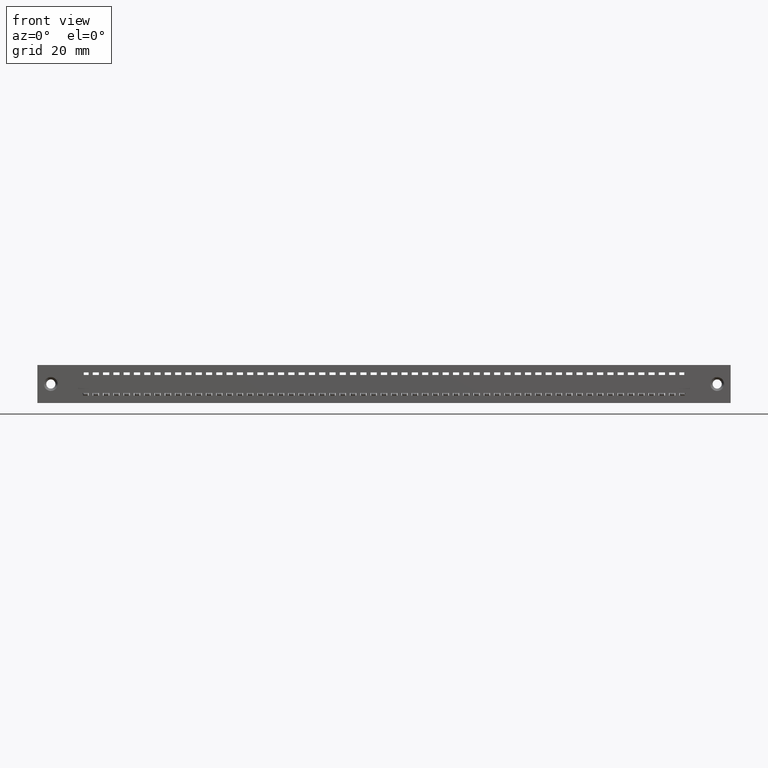
[diagram: clean part render]
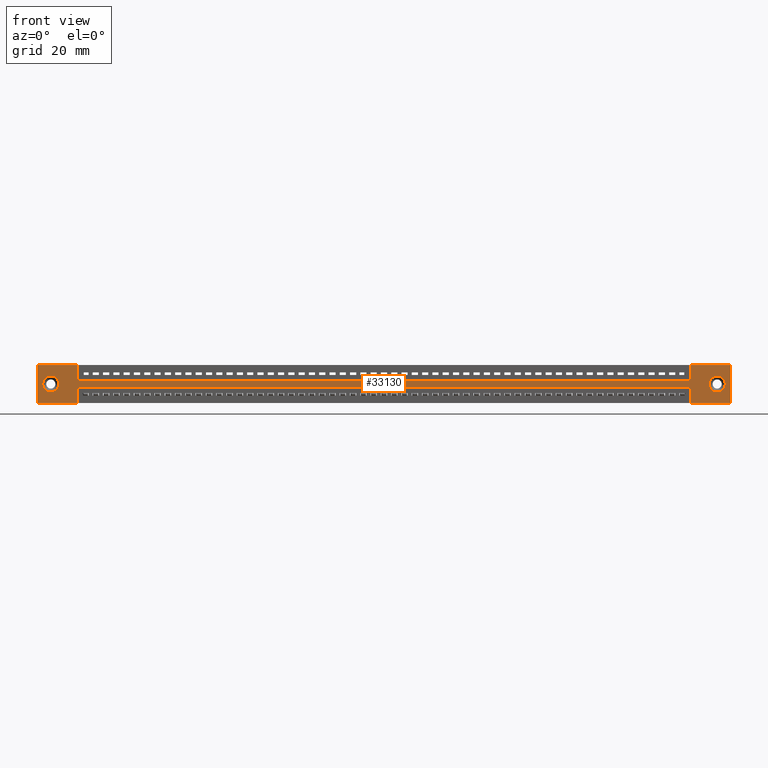
[diagram: same view with one face highlighted and labeled with its STEP entity id]
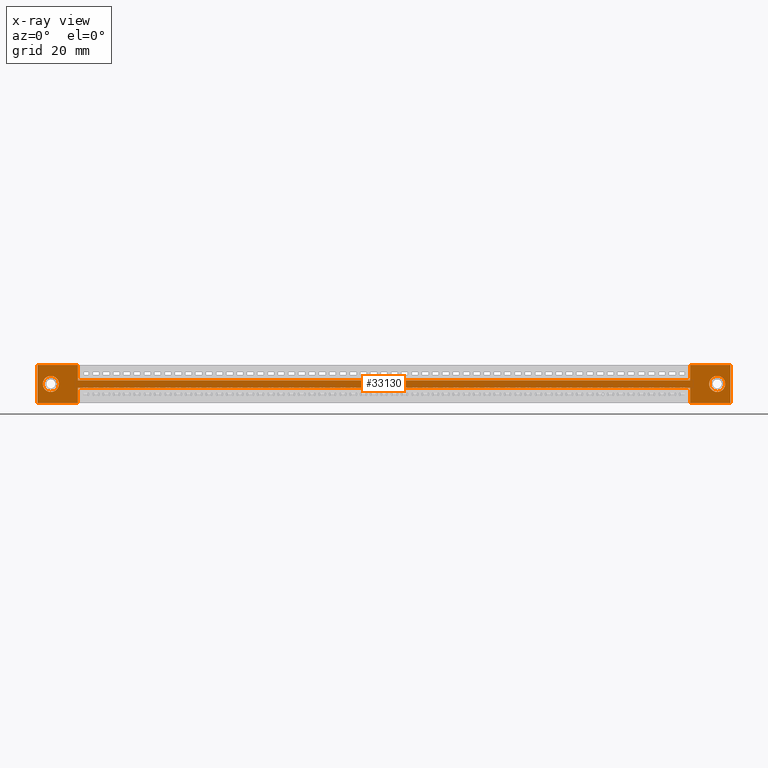
[diagram: x-ray of the same camera — body ghosted, the highlighted face saturated]
A machine part, front view. The second image highlights one B-rep face of the part: STEP entity #33130.
The next image is the same camera in x-ray: the body ghosted, the highlighted face saturated — about 0% of this face is hidden behind the body in this view.
In plain terms, the highlighted planar face has unit normal (0, -1, 0).
Its self-contained STEP definition (entity closure, byte-faithful):
#1000 = EDGE_CURVE ( 'NONE', #39339, #37247, #9983, .T. ) ;
#1463 = DIRECTION ( 'NONE',  ( 0.0000000000000000000, 0.0000000000000000000, -1.000000000000000000 ) ) ;
#2193 = CARTESIAN_POINT ( 'NONE',  ( 0.1299999999999994200, 0.0000000000000000000, -0.1850000000000000800 ) ) ;
#2438 = ORIENTED_EDGE ( 'NONE', *, *, #39757, .F. ) ;
#2510 = VERTEX_POINT ( 'NONE', #28926 ) ;
#2716 = EDGE_CURVE ( 'NONE', #27831, #22664, #26837, .T. ) ;
#2828 = CARTESIAN_POINT ( 'NONE',  ( 6.735000000000000300, 0.0000000000000000000, -0.3700000000000000000 ) ) ;
#2866 = DIRECTION ( 'NONE',  ( 0.0000000000000000000, 1.000000000000000000, -0.0000000000000000000 ) ) ;
#2947 = DIRECTION ( 'NONE',  ( 0.0000000000000000000, 1.000000000000000000, 0.0000000000000000000 ) ) ;
#3117 = VERTEX_POINT ( 'NONE', #31866 ) ;
#3747 = VERTEX_POINT ( 'NONE', #42183 ) ;
#4554 = CARTESIAN_POINT ( 'NONE',  ( 0.0000000000000000000, 0.0000000000000000000, -0.3700000000000001600 ) ) ;
#4754 = EDGE_CURVE ( 'NONE', #3747, #40182, #26007, .T. ) ;
#4962 = LINE ( 'NONE', #14918, #40046 ) ;
#5244 = EDGE_LOOP ( 'NONE', ( #2438, #23557, #6980, #7493, #21491, #31672, #8737, #8438, #17567, #19189, #5995, #38097 ) ) ;
#5412 = CARTESIAN_POINT ( 'NONE',  ( 6.342500000000000200, 0.0000000000000000000, -0.1499999999999999900 ) ) ;
#5706 = DIRECTION ( 'NONE',  ( 0.0000000000000000000, 0.0000000000000000000, 1.000000000000000000 ) ) ;
#5949 = CARTESIAN_POINT ( 'NONE',  ( 6.605000000000000400, 0.0000000000000000000, -0.2630000000000000100 ) ) ;
#5995 = ORIENTED_EDGE ( 'NONE', *, *, #6402, .F. ) ;
#6332 = CARTESIAN_POINT ( 'NONE',  ( 6.605000000000000400, 0.0000000000000000000, -0.1850000000000000000 ) ) ;
#6402 = EDGE_CURVE ( 'NONE', #23340, #27831, #17397, .T. ) ;
#6527 = EDGE_LOOP ( 'NONE', ( #15524, #16378 ) ) ;
#6658 = EDGE_CURVE ( 'NONE', #42485, #39417, #42302, .T. ) ;
#6980 = ORIENTED_EDGE ( 'NONE', *, *, #19575, .F. ) ;
#7493 = ORIENTED_EDGE ( 'NONE', *, *, #27386, .F. ) ;
#8094 = EDGE_CURVE ( 'NONE', #37247, #3117, #4962, .T. ) ;
#8227 = DIRECTION ( 'NONE',  ( 1.000000000000000000, 0.0000000000000000000, 0.0000000000000000000 ) ) ;
#8287 = CARTESIAN_POINT ( 'NONE',  ( 0.0000000000000000000, 0.0000000000000000000, -0.3700000000000001600 ) ) ;
#8360 = DIRECTION ( 'NONE',  ( 0.0000000000000000000, 1.000000000000000000, -0.0000000000000000000 ) ) ;
#8438 = ORIENTED_EDGE ( 'NONE', *, *, #35737, .F. ) ;
#8650 = CARTESIAN_POINT ( 'NONE',  ( 6.342500000000000200, 0.0000000000000000000, -0.3700000000000000000 ) ) ;
#8737 = ORIENTED_EDGE ( 'NONE', *, *, #1000, .F. ) ;
#8838 = CARTESIAN_POINT ( 'NONE',  ( 0.3924999999999996800, 0.0000000000000000000, -0.1499999999999999900 ) ) ;
#9127 = DIRECTION ( 'NONE',  ( 1.000000000000000000, 0.0000000000000000000, 0.0000000000000000000 ) ) ;
#9278 = CARTESIAN_POINT ( 'NONE',  ( 6.342500000000000200, 0.0000000000000000000, -0.3700000000000000000 ) ) ;
#9738 = CARTESIAN_POINT ( 'NONE',  ( 6.735000000000000300, 0.0000000000000000000, 0.0000000000000000000 ) ) ;
#9895 = VECTOR ( 'NONE', #33516, 39.37007874015748100 ) ;
#9923 = VECTOR ( 'NONE', #39264, 39.37007874015748100 ) ;
#9970 = CARTESIAN_POINT ( 'NONE',  ( 0.1299999999999994200, 0.0000000000000000000, -0.1850000000000000800 ) ) ;
#9983 = LINE ( 'NONE', #12058, #32835 ) ;
#10658 = VECTOR ( 'NONE', #5706, 39.37007874015748100 ) ;
#10743 = VECTOR ( 'NONE', #39629, 39.37007874015748100 ) ;
#10965 = LINE ( 'NONE', #9738, #9895 ) ;
#11521 = AXIS2_PLACEMENT_3D ( 'NONE', #8287, #28764, #18221 ) ;
#11543 = EDGE_CURVE ( 'NONE', #12571, #23340, #29235, .T. ) ;
#11967 = VECTOR ( 'NONE', #18015, 39.37007874015748100 ) ;
#12058 = CARTESIAN_POINT ( 'NONE',  ( 6.342500000000000200, 0.0000000000000000000, 0.0000000000000000000 ) ) ;
#12374 = CARTESIAN_POINT ( 'NONE',  ( 0.3924999999999996800, 0.0000000000000000000, -0.1499999999999999900 ) ) ;
#12571 = VERTEX_POINT ( 'NONE', #15445 ) ;
#12834 = CARTESIAN_POINT ( 'NONE',  ( 0.1299999999999994200, 0.0000000000000000000, -0.1069999999999999600 ) ) ;
#13266 = CARTESIAN_POINT ( 'NONE',  ( 0.1299999999999994500, 0.0000000000000000000, -0.2630000000000001800 ) ) ;
#14453 = LINE ( 'NONE', #22557, #10743 ) ;
#14673 = PLANE ( 'NONE',  #11521 ) ;
#14918 = CARTESIAN_POINT ( 'NONE',  ( 0.0000000000000000000, 0.0000000000000000000, 0.0000000000000000000 ) ) ;
#15445 = CARTESIAN_POINT ( 'NONE',  ( 0.3924999999999996800, 0.0000000000000000000, -0.3700000000000000000 ) ) ;
#15450 = VECTOR ( 'NONE', #38243, 39.37007874015748100 ) ;
#15524 = ORIENTED_EDGE ( 'NONE', *, *, #32112, .T. ) ;
#16378 = ORIENTED_EDGE ( 'NONE', *, *, #6658, .T. ) ;
#16620 = VERTEX_POINT ( 'NONE', #32858 ) ;
#16892 = DIRECTION ( 'NONE',  ( 0.0000000000000000000, 0.0000000000000000000, -1.000000000000000000 ) ) ;
#17397 = LINE ( 'NONE', #35823, #9923 ) ;
#17567 = ORIENTED_EDGE ( 'NONE', *, *, #40542, .F. ) ;
#17584 = CARTESIAN_POINT ( 'NONE',  ( 0.3924999999999996800, 0.0000000000000000000, -0.3700000000000000000 ) ) ;
#18015 = DIRECTION ( 'NONE',  ( -0.0000000000000000000, -0.0000000000000000000, -1.000000000000000000 ) ) ;
#18214 = VECTOR ( 'NONE', #34866, 39.37007874015748100 ) ;
#18221 = DIRECTION ( 'NONE',  ( 0.0000000000000000000, -0.0000000000000000000, -1.000000000000000000 ) ) ;
#18256 = VERTEX_POINT ( 'NONE', #8650 ) ;
#19000 = CIRCLE ( 'NONE', #23684, 0.07800000000000002800 ) ;
#19152 = DIRECTION ( 'NONE',  ( 0.0000000000000000000, 1.000000000000000000, 0.0000000000000000000 ) ) ;
#19189 = ORIENTED_EDGE ( 'NONE', *, *, #2716, .F. ) ;
#19575 = EDGE_CURVE ( 'NONE', #18256, #16620, #41958, .T. ) ;
#20945 = CARTESIAN_POINT ( 'NONE',  ( 0.3924999999999996800, 0.0000000000000000000, 0.0000000000000000000 ) ) ;
#20980 = DIRECTION ( 'NONE',  ( -1.000000000000000000, -0.0000000000000000000, -0.0000000000000000000 ) ) ;
#21342 = FACE_BOUND ( 'NONE', #6527, .T. ) ;
#21491 = ORIENTED_EDGE ( 'NONE', *, *, #38653, .F. ) ;
#21749 = ORIENTED_EDGE ( 'NONE', *, *, #30135, .T. ) ;
#21915 = FACE_OUTER_BOUND ( 'NONE', #5244, .T. ) ;
#22557 = CARTESIAN_POINT ( 'NONE',  ( 0.3924999999999996800, 0.0000000000000000000, 0.0000000000000000000 ) ) ;
#22664 = VERTEX_POINT ( 'NONE', #20945 ) ;
#23337 = DIRECTION ( 'NONE',  ( 0.0000000000000000000, 0.0000000000000000000, 1.000000000000000000 ) ) ;
#23340 = VERTEX_POINT ( 'NONE', #38291 ) ;
#23557 = ORIENTED_EDGE ( 'NONE', *, *, #25514, .F. ) ;
#23644 = AXIS2_PLACEMENT_3D ( 'NONE', #9970, #2947, #23337 ) ;
#23684 = AXIS2_PLACEMENT_3D ( 'NONE', #25425, #8360, #1463 ) ;
#24612 = LINE ( 'NONE', #4554, #18214 ) ;
#24680 = VECTOR ( 'NONE', #32653, 39.37007874015748100 ) ;
#25425 = CARTESIAN_POINT ( 'NONE',  ( 6.605000000000000400, 0.0000000000000000000, -0.1850000000000000000 ) ) ;
#25514 = EDGE_CURVE ( 'NONE', #16620, #2510, #28519, .T. ) ;
#25774 = ORIENTED_EDGE ( 'NONE', *, *, #4754, .T. ) ;
#26007 = CIRCLE ( 'NONE', #42389, 0.07800000000000002800 ) ;
#26126 = DIRECTION ( 'NONE',  ( 0.0000000000000000000, 0.0000000000000000000, 1.000000000000000000 ) ) ;
#26837 = LINE ( 'NONE', #43498, #24680 ) ;
#27272 = EDGE_LOOP ( 'NONE', ( #25774, #21749 ) ) ;
#27386 = EDGE_CURVE ( 'NONE', #31689, #18256, #24612, .T. ) ;
#27831 = VERTEX_POINT ( 'NONE', #34532 ) ;
#28519 = LINE ( 'NONE', #34523, #37017 ) ;
#28764 = DIRECTION ( 'NONE',  ( 0.0000000000000000000, -1.000000000000000000, 0.0000000000000000000 ) ) ;
#28804 = FACE_BOUND ( 'NONE', #27272, .T. ) ;
#28926 = CARTESIAN_POINT ( 'NONE',  ( 0.3924999999999996800, 0.0000000000000000000, -0.2200000000000000000 ) ) ;
#29235 = LINE ( 'NONE', #34970, #15450 ) ;
#30135 = EDGE_CURVE ( 'NONE', #40182, #3747, #19000, .T. ) ;
#30936 = VECTOR ( 'NONE', #9127, 39.37007874015748100 ) ;
#31672 = ORIENTED_EDGE ( 'NONE', *, *, #8094, .F. ) ;
#31689 = VERTEX_POINT ( 'NONE', #2828 ) ;
#31866 = CARTESIAN_POINT ( 'NONE',  ( 6.735000000000000300, 0.0000000000000000000, 0.0000000000000000000 ) ) ;
#32112 = EDGE_CURVE ( 'NONE', #39417, #42485, #36346, .T. ) ;
#32653 = DIRECTION ( 'NONE',  ( 1.000000000000000000, 0.0000000000000000000, 0.0000000000000000000 ) ) ;
#32835 = VECTOR ( 'NONE', #42809, 39.37007874015748100 ) ;
#32858 = CARTESIAN_POINT ( 'NONE',  ( 6.342500000000000200, 0.0000000000000000000, -0.2200000000000000000 ) ) ;
#33130 = ADVANCED_FACE ( 'NONE', ( #28804, #21342, #21915 ), #14673, .T. ) ;
#33516 = DIRECTION ( 'NONE',  ( 0.0000000000000000000, 0.0000000000000000000, -1.000000000000000000 ) ) ;
#34523 = CARTESIAN_POINT ( 'NONE',  ( 0.3924999999999996800, 0.0000000000000000000, -0.2200000000000000000 ) ) ;
#34532 = CARTESIAN_POINT ( 'NONE',  ( 0.0000000000000000000, 0.0000000000000000000, 0.0000000000000000000 ) ) ;
#34866 = DIRECTION ( 'NONE',  ( -1.000000000000000000, -0.0000000000000000000, -2.028097990842066200E-017 ) ) ;
#34970 = CARTESIAN_POINT ( 'NONE',  ( 0.0000000000000000000, 0.0000000000000000000, -0.3700000000000001600 ) ) ;
#35737 = EDGE_CURVE ( 'NONE', #37345, #39339, #37853, .T. ) ;
#35823 = CARTESIAN_POINT ( 'NONE',  ( 0.0000000000000000000, 0.0000000000000000000, 0.0000000000000000000 ) ) ;
#35971 = AXIS2_PLACEMENT_3D ( 'NONE', #2193, #19152, #26126 ) ;
#36346 = CIRCLE ( 'NONE', #35971, 0.07800000000000011100 ) ;
#36431 = CARTESIAN_POINT ( 'NONE',  ( 6.342500000000000200, 0.0000000000000000000, 0.0000000000000000000 ) ) ;
#37017 = VECTOR ( 'NONE', #20980, 39.37007874015748100 ) ;
#37247 = VERTEX_POINT ( 'NONE', #36431 ) ;
#37345 = VERTEX_POINT ( 'NONE', #12374 ) ;
#37853 = LINE ( 'NONE', #8838, #30936 ) ;
#38097 = ORIENTED_EDGE ( 'NONE', *, *, #11543, .F. ) ;
#38243 = DIRECTION ( 'NONE',  ( -1.000000000000000000, -0.0000000000000000000, -2.028097990842066200E-017 ) ) ;
#38291 = CARTESIAN_POINT ( 'NONE',  ( 0.0000000000000000000, 0.0000000000000000000, -0.3700000000000001600 ) ) ;
#38653 = EDGE_CURVE ( 'NONE', #3117, #31689, #10965, .T. ) ;
#39090 = LINE ( 'NONE', #17584, #11967 ) ;
#39264 = DIRECTION ( 'NONE',  ( -0.0000000000000000000, -0.0000000000000000000, 1.000000000000000000 ) ) ;
#39339 = VERTEX_POINT ( 'NONE', #5412 ) ;
#39417 = VERTEX_POINT ( 'NONE', #12834 ) ;
#39629 = DIRECTION ( 'NONE',  ( 0.0000000000000000000, 0.0000000000000000000, -1.000000000000000000 ) ) ;
#39757 = EDGE_CURVE ( 'NONE', #2510, #12571, #39090, .T. ) ;
#40046 = VECTOR ( 'NONE', #8227, 39.37007874015748100 ) ;
#40182 = VERTEX_POINT ( 'NONE', #5949 ) ;
#40542 = EDGE_CURVE ( 'NONE', #22664, #37345, #14453, .T. ) ;
#41958 = LINE ( 'NONE', #9278, #10658 ) ;
#42183 = CARTESIAN_POINT ( 'NONE',  ( 6.605000000000000400, 0.0000000000000000000, -0.1069999999999999800 ) ) ;
#42302 = CIRCLE ( 'NONE', #23644, 0.07800000000000011100 ) ;
#42389 = AXIS2_PLACEMENT_3D ( 'NONE', #6332, #2866, #16892 ) ;
#42485 = VERTEX_POINT ( 'NONE', #13266 ) ;
#42809 = DIRECTION ( 'NONE',  ( -0.0000000000000000000, -0.0000000000000000000, 1.000000000000000000 ) ) ;
#43498 = CARTESIAN_POINT ( 'NONE',  ( 0.0000000000000000000, 0.0000000000000000000, 0.0000000000000000000 ) ) ;